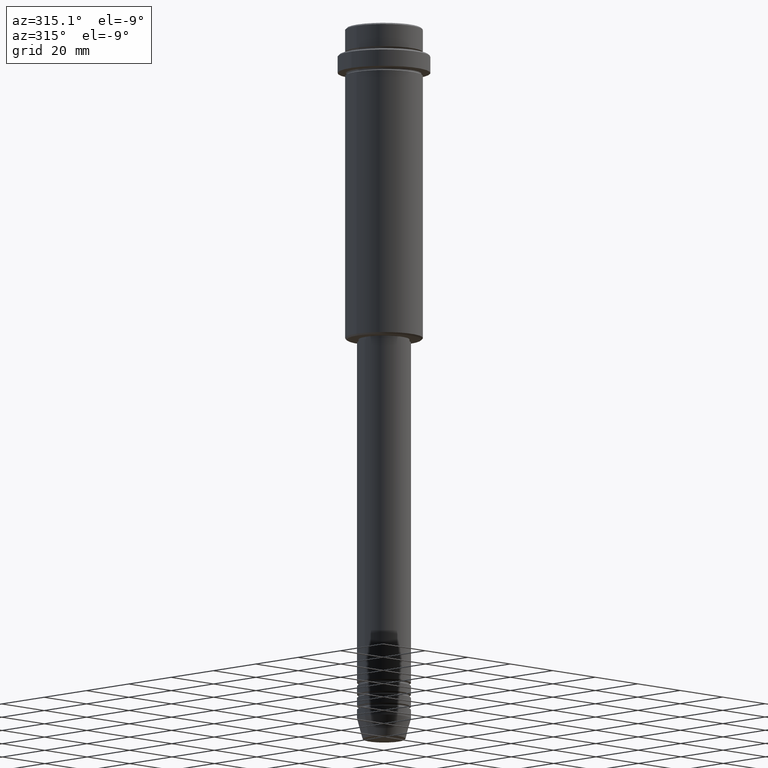
[diagram: clean part render]
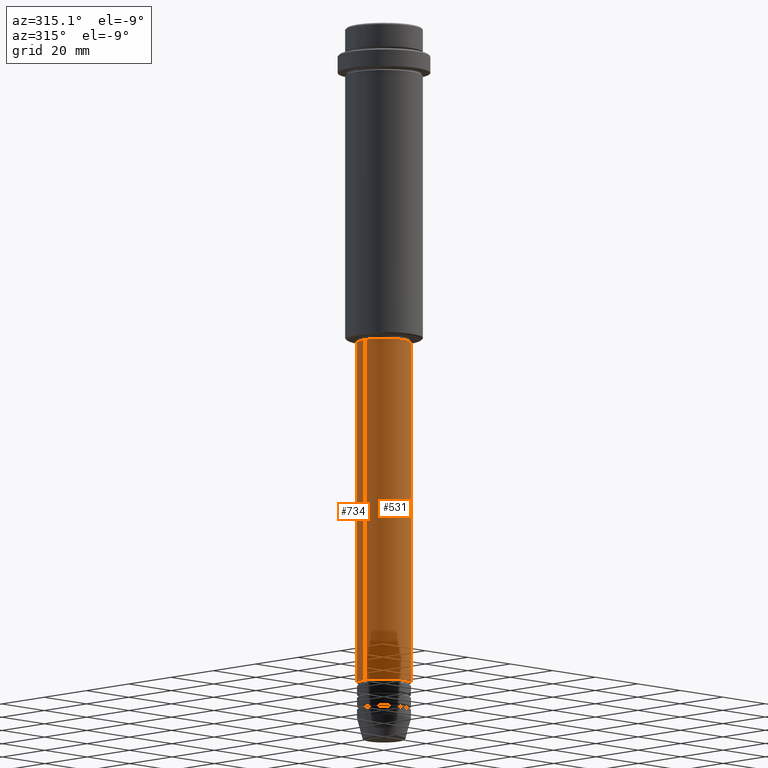
[diagram: same view with one multi-face feature highlighted, each face labeled with its STEP entity id]
A machine part, auxiliary view. The highlighted faces form ONE feature: a constant-radius fillet chain: 2 tangent blend faces with common blend radius 9 mm. The faces share edges in the B-rep.
Their STEP definitions:
[1] entity #734 (Cylinder):
#69 = DIRECTION ( 'NONE',  ( -0.000000000000000000, -0.000000000000000000, 1.000000000000000000 ) ) ;
#78 = VECTOR ( 'NONE', #373, 1000.000000000000000 ) ;
#170 = VECTOR ( 'NONE', #69, 1000.000000000000000 ) ;
#201 = VERTEX_POINT ( 'NONE', #747 ) ;
#226 = CARTESIAN_POINT ( 'NONE',  ( 0.000000000000000000, 0.000000000000000000, -220.9999999999999432 ) ) ;
#243 = CARTESIAN_POINT ( 'NONE',  ( -9.000000000000001776, 1.102182119232617911E-15, -106.0000000000000142 ) ) ;
#274 = CARTESIAN_POINT ( 'NONE',  ( 0.000000000000000000, 0.000000000000000000, 0.000000000000000000 ) ) ;
#345 = ORIENTED_EDGE ( 'NONE', *, *, #1368, .T. ) ;
#347 = CIRCLE ( 'NONE', #1278, 9.000000000000001776 ) ;
#358 = CYLINDRICAL_SURFACE ( 'NONE', #599, 9.000000000000001776 ) ;
#373 = DIRECTION ( 'NONE',  ( -0.000000000000000000, -0.000000000000000000, 1.000000000000000000 ) ) ;
#506 = DIRECTION ( 'NONE',  ( 1.000000000000000000, 0.000000000000000000, 0.000000000000000000 ) ) ;
#572 = EDGE_CURVE ( 'NONE', #862, #1077, #1141, .T. ) ;
#599 = AXIS2_PLACEMENT_3D ( 'NONE', #274, #793, #901 ) ;
#632 = CARTESIAN_POINT ( 'NONE',  ( 9.000000000000000000, 0.000000000000000000, -220.9999999999999432 ) ) ;
#716 = CARTESIAN_POINT ( 'NONE',  ( 9.000000000000001776, 0.000000000000000000, 0.000000000000000000 ) ) ;
#717 = CARTESIAN_POINT ( 'NONE',  ( -9.000000000000001776, 1.102182119232617911E-15, 0.000000000000000000 ) ) ;
#724 = CARTESIAN_POINT ( 'NONE',  ( 9.000000000000001776, 0.000000000000000000, -106.0000000000000142 ) ) ;
#734 = ADVANCED_FACE ( 'NONE', ( #915 ), #358, .T. ) ;
#747 = CARTESIAN_POINT ( 'NONE',  ( -9.000000000000000000, 1.102182119232617714E-15, -220.9999999999999432 ) ) ;
#773 = DIRECTION ( 'NONE',  ( -0.000000000000000000, -0.000000000000000000, 1.000000000000000000 ) ) ;
#793 = DIRECTION ( 'NONE',  ( -0.000000000000000000, -0.000000000000000000, 1.000000000000000000 ) ) ;
#835 = ORIENTED_EDGE ( 'NONE', *, *, #1110, .F. ) ;
#862 = VERTEX_POINT ( 'NONE', #632 ) ;
#900 = CIRCLE ( 'NONE', #1204, 9.000000000000000000 ) ;
#901 = DIRECTION ( 'NONE',  ( 1.000000000000000000, 0.000000000000000000, 0.000000000000000000 ) ) ;
#915 = FACE_OUTER_BOUND ( 'NONE', #1374, .T. ) ;
#950 = ORIENTED_EDGE ( 'NONE', *, *, #572, .F. ) ;
#1002 = EDGE_CURVE ( 'NONE', #201, #1327, #1285, .T. ) ;
#1046 = DIRECTION ( 'NONE',  ( -0.000000000000000000, -0.000000000000000000, 1.000000000000000000 ) ) ;
#1077 = VERTEX_POINT ( 'NONE', #724 ) ;
#1110 = EDGE_CURVE ( 'NONE', #1077, #1327, #347, .T. ) ;
#1141 = LINE ( 'NONE', #716, #78 ) ;
#1204 = AXIS2_PLACEMENT_3D ( 'NONE', #226, #773, #1330 ) ;
#1278 = AXIS2_PLACEMENT_3D ( 'NONE', #1294, #1046, #506 ) ;
#1285 = LINE ( 'NONE', #717, #170 ) ;
#1294 = CARTESIAN_POINT ( 'NONE',  ( 0.000000000000000000, 0.000000000000000000, -106.0000000000000142 ) ) ;
#1327 = VERTEX_POINT ( 'NONE', #243 ) ;
#1330 = DIRECTION ( 'NONE',  ( 1.000000000000000000, 0.000000000000000000, 0.000000000000000000 ) ) ;
#1368 = EDGE_CURVE ( 'NONE', #862, #201, #900, .T. ) ;
#1374 = EDGE_LOOP ( 'NONE', ( #345, #1393, #835, #950 ) ) ;
#1393 = ORIENTED_EDGE ( 'NONE', *, *, #1002, .T. ) ;
[2] entity #531 (Cylinder):
#22 = DIRECTION ( 'NONE',  ( -0.000000000000000000, -0.000000000000000000, 1.000000000000000000 ) ) ;
#69 = DIRECTION ( 'NONE',  ( -0.000000000000000000, -0.000000000000000000, 1.000000000000000000 ) ) ;
#78 = VECTOR ( 'NONE', #373, 1000.000000000000000 ) ;
#126 = CYLINDRICAL_SURFACE ( 'NONE', #597, 9.000000000000001776 ) ;
#157 = EDGE_CURVE ( 'NONE', #1327, #1077, #1301, .T. ) ;
#168 = AXIS2_PLACEMENT_3D ( 'NONE', #956, #181, #733 ) ;
#170 = VECTOR ( 'NONE', #69, 1000.000000000000000 ) ;
#181 = DIRECTION ( 'NONE',  ( -0.000000000000000000, -0.000000000000000000, 1.000000000000000000 ) ) ;
#183 = ORIENTED_EDGE ( 'NONE', *, *, #572, .T. ) ;
#201 = VERTEX_POINT ( 'NONE', #747 ) ;
#243 = CARTESIAN_POINT ( 'NONE',  ( -9.000000000000001776, 1.102182119232617911E-15, -106.0000000000000142 ) ) ;
#275 = ORIENTED_EDGE ( 'NONE', *, *, #1002, .F. ) ;
#373 = DIRECTION ( 'NONE',  ( -0.000000000000000000, -0.000000000000000000, 1.000000000000000000 ) ) ;
#466 = ORIENTED_EDGE ( 'NONE', *, *, #157, .F. ) ;
#485 = AXIS2_PLACEMENT_3D ( 'NONE', #609, #1064, #527 ) ;
#527 = DIRECTION ( 'NONE',  ( 1.000000000000000000, 0.000000000000000000, 0.000000000000000000 ) ) ;
#531 = ADVANCED_FACE ( 'NONE', ( #1239 ), #126, .T. ) ;
#572 = EDGE_CURVE ( 'NONE', #862, #1077, #1141, .T. ) ;
#597 = AXIS2_PLACEMENT_3D ( 'NONE', #1138, #22, #1335 ) ;
#609 = CARTESIAN_POINT ( 'NONE',  ( 0.000000000000000000, 0.000000000000000000, -106.0000000000000142 ) ) ;
#632 = CARTESIAN_POINT ( 'NONE',  ( 9.000000000000000000, 0.000000000000000000, -220.9999999999999432 ) ) ;
#716 = CARTESIAN_POINT ( 'NONE',  ( 9.000000000000001776, 0.000000000000000000, 0.000000000000000000 ) ) ;
#717 = CARTESIAN_POINT ( 'NONE',  ( -9.000000000000001776, 1.102182119232617911E-15, 0.000000000000000000 ) ) ;
#724 = CARTESIAN_POINT ( 'NONE',  ( 9.000000000000001776, 0.000000000000000000, -106.0000000000000142 ) ) ;
#733 = DIRECTION ( 'NONE',  ( 1.000000000000000000, 0.000000000000000000, 0.000000000000000000 ) ) ;
#747 = CARTESIAN_POINT ( 'NONE',  ( -9.000000000000000000, 1.102182119232617714E-15, -220.9999999999999432 ) ) ;
#838 = EDGE_CURVE ( 'NONE', #201, #862, #1201, .T. ) ;
#862 = VERTEX_POINT ( 'NONE', #632 ) ;
#865 = ORIENTED_EDGE ( 'NONE', *, *, #838, .T. ) ;
#956 = CARTESIAN_POINT ( 'NONE',  ( 0.000000000000000000, 0.000000000000000000, -220.9999999999999432 ) ) ;
#1002 = EDGE_CURVE ( 'NONE', #201, #1327, #1285, .T. ) ;
#1064 = DIRECTION ( 'NONE',  ( -0.000000000000000000, -0.000000000000000000, 1.000000000000000000 ) ) ;
#1077 = VERTEX_POINT ( 'NONE', #724 ) ;
#1138 = CARTESIAN_POINT ( 'NONE',  ( 0.000000000000000000, 0.000000000000000000, 0.000000000000000000 ) ) ;
#1141 = LINE ( 'NONE', #716, #78 ) ;
#1201 = CIRCLE ( 'NONE', #168, 9.000000000000000000 ) ;
#1239 = FACE_OUTER_BOUND ( 'NONE', #1403, .T. ) ;
#1285 = LINE ( 'NONE', #717, #170 ) ;
#1301 = CIRCLE ( 'NONE', #485, 9.000000000000001776 ) ;
#1327 = VERTEX_POINT ( 'NONE', #243 ) ;
#1335 = DIRECTION ( 'NONE',  ( 1.000000000000000000, 0.000000000000000000, 0.000000000000000000 ) ) ;
#1403 = EDGE_LOOP ( 'NONE', ( #275, #865, #183, #466 ) ) ;